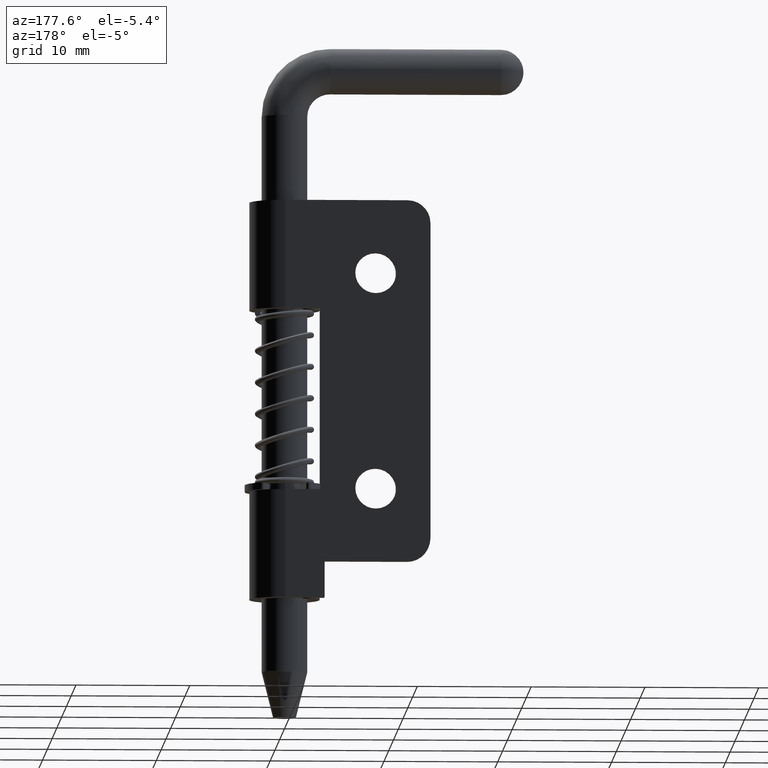
[diagram: clean part render]
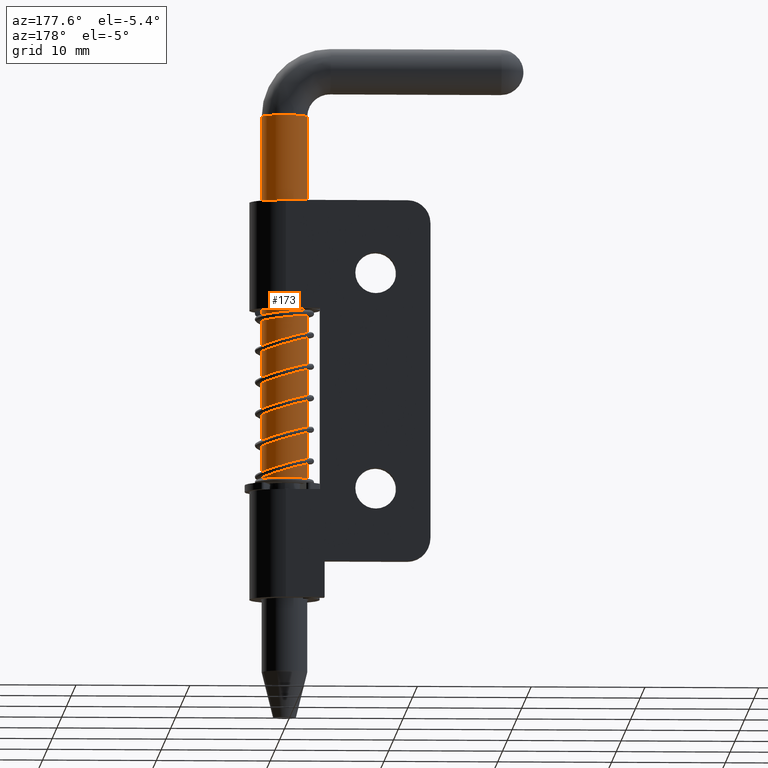
[diagram: same view with one face highlighted and labeled with its STEP entity id]
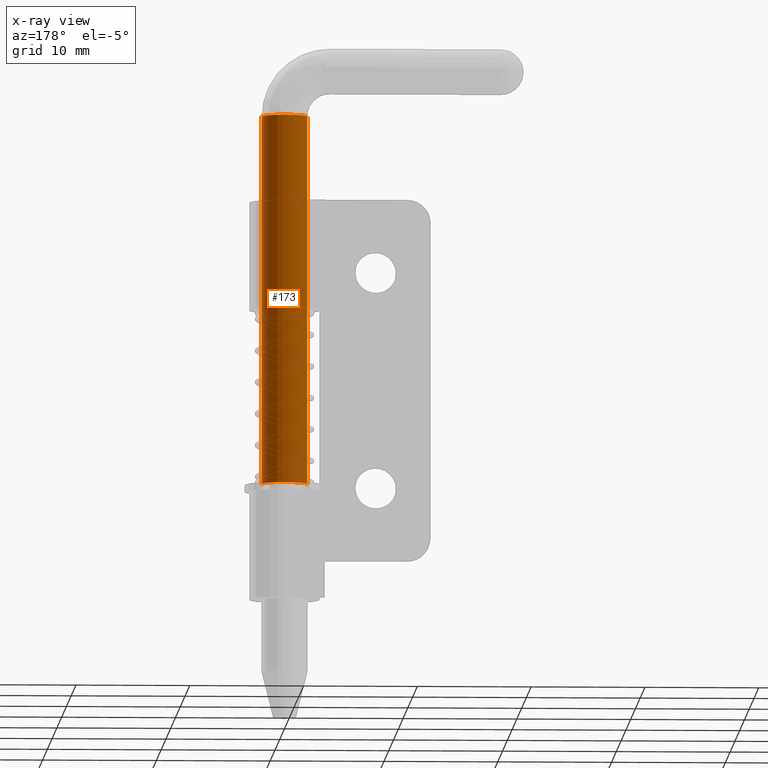
[diagram: x-ray of the same camera — body ghosted, the highlighted face saturated]
A machine part, auxiliary view. The second image highlights one B-rep face of the part: STEP entity #173.
The next image is the same camera in x-ray: the body ghosted, the highlighted face saturated — about 0% of this face is hidden behind the body in this view.
In plain terms, the highlighted cylindrical surface (edge-blend (fillet) strip) has radius 2 mm, axis along (0, 0, 1).
Its self-contained STEP definition (entity closure, byte-faithful):
#173=ADVANCED_FACE('',(#479),#478,.T.);
#478=CYLINDRICAL_SURFACE('',#1246,2.00000000000E+00);
#479=FACE_OUTER_BOUND('',#1247,.T.);
#1243=CARTESIAN_POINT('',(0.00000000000E+00,0.00000000000E+00,0.00000000000E+00));
#1244=DIRECTION('',(0.00000000000E+00,-0.00000000000E+00,1.00000000000E+00));
#1245=DIRECTION('',(1.00000000000E+00,0.00000000000E+00,0.00000000000E+00));
#1246=AXIS2_PLACEMENT_3D('',#1243,#1244,#1245);
#1247=EDGE_LOOP('',(#3243,#3244,#3245,#3246));
#3243=ORIENTED_EDGE('',*,*,#3622,.T.);
#3244=ORIENTED_EDGE('',*,*,#3623,.F.);
#3245=ORIENTED_EDGE('',*,*,#3561,.F.);
#3246=ORIENTED_EDGE('',*,*,#3624,.T.);
#3561=EDGE_CURVE('',#3879,#3880,#3881,.T.);
#3622=EDGE_CURVE('',#4281,#4282,#4283,.T.);
#3623=EDGE_CURVE('',#3880,#4282,#4289,.T.);
#3624=EDGE_CURVE('',#3879,#4281,#4295,.T.);
#3879=VERTEX_POINT('',#5313);
#3880=VERTEX_POINT('',#5314);
#3881=CIRCLE('',#5318,2.00000000000E+00);
#4281=VERTEX_POINT('',#5563);
#4282=VERTEX_POINT('',#5564);
#4283=CIRCLE('',#5568,2.00000000000E+00);
#4289=(BOUNDED_CURVE() B_SPLINE_CURVE(1,(#5569,#5570),.UNSPECIFIED.,.F.,.F.) B_SPLINE_CURVE_WITH_KNOTS((2,2),(8.33333335810E-02,9.16666666255E-01),.UNSPECIFIED.) CURVE() GEOMETRIC_REPRESENTATION_ITEM() RATIONAL_B_SPLINE_CURVE((1.00000000000E+00,1.00000000000E+00)) REPRESENTATION_ITEM('') );
#4295=(BOUNDED_CURVE() B_SPLINE_CURVE(1,(#5571,#5572),.UNSPECIFIED.,.F.,.F.) B_SPLINE_CURVE_WITH_KNOTS((2,2),(8.33333333333E-02,9.16666666667E-01),.UNSPECIFIED.) CURVE() GEOMETRIC_REPRESENTATION_ITEM() RATIONAL_B_SPLINE_CURVE((7.50000000000E-01,7.50000000000E-01)) REPRESENTATION_ITEM('') );
#5313=CARTESIAN_POINT('',(-2.00000000000E+00,0.00000000000E+00,-3.24000000000E+01));
#5314=CARTESIAN_POINT('',(2.00000000000E+00,2.22044604925E-16,-3.24000000000E+01));
#5315=CARTESIAN_POINT('',(0.00000000000E+00,0.00000000000E+00,-3.24000000000E+01));
#5316=DIRECTION('',(-0.00000000000E+00,0.00000000000E+00,-1.00000000000E+00));
#5317=DIRECTION('',(-1.00000000000E+00,-1.22460635382E-16,0.00000000000E+00));
#5318=AXIS2_PLACEMENT_3D('',#5315,#5316,#5317);
#5563=CARTESIAN_POINT('',(-2.00000000000E+00,-2.22044604925E-16,0.00000000000E+00));
#5564=CARTESIAN_POINT('',(2.00000000000E+00,0.00000000000E+00,0.00000000000E+00));
#5565=CARTESIAN_POINT('',(0.00000000000E+00,0.00000000000E+00,0.00000000000E+00));
#5566=DIRECTION('',(0.00000000000E+00,0.00000000000E+00,-1.00000000000E+00));
#5567=DIRECTION('',(1.00000000000E+00,1.22460635382E-16,0.00000000000E+00));
#5568=AXIS2_PLACEMENT_3D('',#5565,#5566,#5567);
#5569=CARTESIAN_POINT('',(2.00000000000E+00,0.00000000000E+00,-3.23999999904E+01));
#5570=CARTESIAN_POINT('',(2.00000000000E+00,0.00000000000E+00,-1.59906461406E-08));
#5571=CARTESIAN_POINT('',(-2.00000000000E+00,-7.40148683083E-17,-3.24000000000E+01));
#5572=CARTESIAN_POINT('',(-2.00000000000E+00,-7.40148683083E-17,5.92118946467E-16));